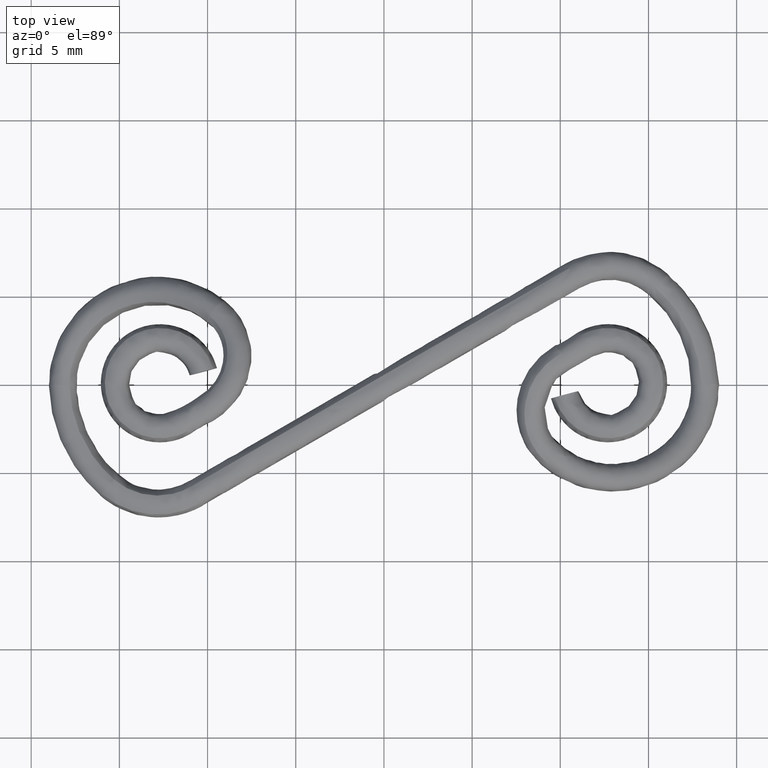
[diagram: clean part render]
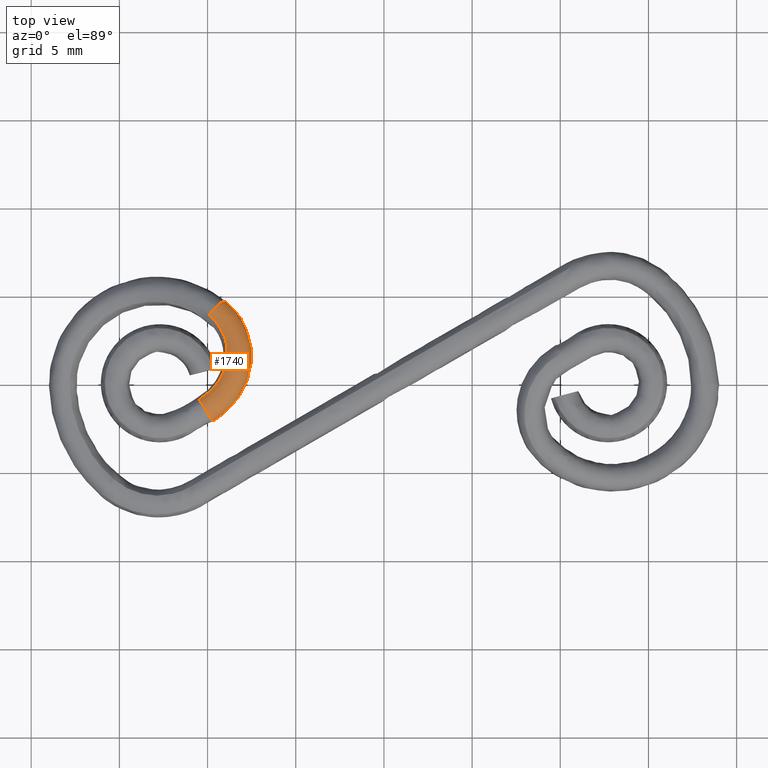
[diagram: same view with one face highlighted and labeled with its STEP entity id]
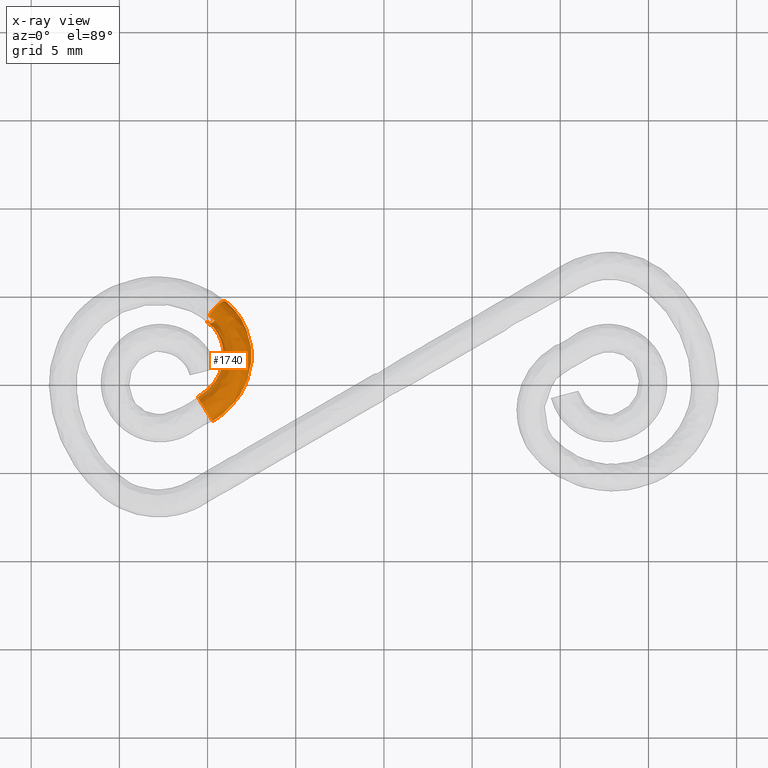
[diagram: x-ray of the same camera — body ghosted, the highlighted face saturated]
A machine part, top view. The second image highlights one B-rep face of the part: STEP entity #1740.
The next image is the same camera in x-ray: the body ghosted, the highlighted face saturated — about 0% of this face is hidden behind the body in this view.
In plain terms, the highlighted face is a freeform B-spline surface patch.
Its self-contained STEP definition (entity closure, byte-faithful):
#214=CARTESIAN_POINT('',(-10.259384407418660,-1.239588838301190,3.486448253810345));
#215=VERTEX_POINT('',#214);
#221=CARTESIAN_POINT('',(-9.703835336696340,-2.146131439929000,4.241502839634532));
#222=VERTEX_POINT('',#221);
#223=CARTESIAN_POINT('',(-9.703835336696340,-2.146131439929000,4.241502839634532));
#224=CARTESIAN_POINT('',(-9.701354668096462,-2.144630523217798,4.032062615204343));
#225=CARTESIAN_POINT('',(-9.744661715935846,-2.070068765534649,3.823878536675959));
#226=CARTESIAN_POINT('',(-9.898398698753024,-1.816923523801569,3.527570067437146));
#227=CARTESIAN_POINT('',(-10.007881947108450,-1.639898865802886,3.441270294712393));
#228=CARTESIAN_POINT('',(-10.166600461727670,-1.386524239768761,3.441153951388853));
#229=CARTESIAN_POINT('',(-10.214191334653311,-1.310962036914593,3.456873590045467));
#230=CARTESIAN_POINT('',(-10.259384407418660,-1.239588838301190,3.486448253810345));
#231=B_SPLINE_CURVE_WITH_KNOTS('',3,(#223,#224,#225,#226,#227,#228,#229,#230),.UNSPECIFIED.,.F.,.U.,(4,2,2,4),(0.500000000000000,0.625000000000000,0.750000000000000,0.803433035941438),.UNSPECIFIED.);
#232=EDGE_CURVE('',#222,#215,#231,.T.);
#234=CARTESIAN_POINT('',(-10.477531504177289,-0.923281509197771,4.711188433420359));
#235=VERTEX_POINT('',#234);
#236=CARTESIAN_POINT('',(-10.477531504177289,-0.923281509197771,4.711188433420359));
#237=CARTESIAN_POINT('',(-10.464941725526650,-0.944264696865793,4.745144681837288));
#238=CARTESIAN_POINT('',(-10.450911701555150,-0.967496679002745,4.777169764554863));
#239=CARTESIAN_POINT('',(-10.358676950107300,-1.119370940043812,4.954912377618960));
#240=CARTESIAN_POINT('',(-10.249200301090999,-1.296384167623944,5.041174493285659));
#241=CARTESIAN_POINT('',(-10.026832301043200,-1.651365991727100,5.041278936023181));
#242=CARTESIAN_POINT('',(-9.915310254957211,-1.827148669560345,4.955120619953089));
#243=CARTESIAN_POINT('',(-9.754558988400881,-2.076045028980230,4.659030656656110));
#244=CARTESIAN_POINT('',(-9.706319647338750,-2.147626048422130,4.450922281891860));
#245=CARTESIAN_POINT('',(-9.703835336696340,-2.146131439929000,4.241502839634532));
#246=B_SPLINE_CURVE_WITH_KNOTS('',3,(#236,#237,#238,#239,#240,#241,#242,#243,#244,#245),.UNSPECIFIED.,.F.,.U.,(4,2,2,2,4),(0.099999989464219,0.125000000000000,0.250000000000000,0.375000000000000,0.500000000000000),.UNSPECIFIED.);
#247=EDGE_CURVE('',#235,#222,#246,.T.);
#249=CARTESIAN_POINT('',(-10.553218530129911,-0.790200751597931,4.241103897763832));
#250=VERTEX_POINT('',#249);
#258=CARTESIAN_POINT('',(-10.487712337059760,-0.883809416313832,3.825365108266582));
#259=VERTEX_POINT('',#258);
#260=CARTESIAN_POINT('',(-10.487712337059760,-0.883809416313832,3.825365108266582));
#261=CARTESIAN_POINT('',(-10.528545332927131,-0.821920870534407,3.950226349181216));
#262=CARTESIAN_POINT('',(-10.551877058860470,-0.788502384862920,4.095367080651237));
#263=CARTESIAN_POINT('',(-10.553218530129911,-0.790200751597931,4.241103897763832));
#264=B_SPLINE_CURVE_WITH_KNOTS('',3,(#260,#261,#262,#263),.UNSPECIFIED.,.F.,.U.,(4,4),(0.913285480192841,1.0),.UNSPECIFIED.);
#265=EDGE_CURVE('',#259,#250,#264,.T.);
#302=CARTESIAN_POINT('',(-10.259384407418660,-1.239588838301190,3.486448253810345));
#303=CARTESIAN_POINT('',(-10.320150007022249,-1.143586118035596,3.525823499213144));
#304=CARTESIAN_POINT('',(-10.376633474046880,-1.055064657580162,3.590030427158738));
#305=CARTESIAN_POINT('',(-10.447653667973460,-0.945031161430309,3.719732704528950));
#306=CARTESIAN_POINT('',(-10.469388704618870,-0.911645559379526,3.770572857804670));
#307=CARTESIAN_POINT('',(-10.487712337059760,-0.883809416313832,3.825365108266582));
#308=B_SPLINE_CURVE_WITH_KNOTS('',3,(#302,#303,#304,#305,#306,#307),.UNSPECIFIED.,.F.,.U.,(4,2,4),(0.803433035941438,0.875000000000000,0.913285480192841),.UNSPECIFIED.);
#309=EDGE_CURVE('',#215,#259,#308,.T.);
#1282=CARTESIAN_POINT('',(-10.511457325186401,-0.928894703550084,4.692351594366400));
#1283=CARTESIAN_POINT('',(-10.497200541772720,-0.952982318359611,4.732979923674587));
#1284=CARTESIAN_POINT('',(-10.412561136361260,-1.094851154657691,4.934081373316897));
#1285=CARTESIAN_POINT('',(-10.168599114159550,-1.492831338629826,5.126960290372204));
#1286=CARTESIAN_POINT('',(-9.945730551477823,-1.846544252897791,4.954620339055110));
#1287=CARTESIAN_POINT('',(-9.785745070998788,-2.095580718094787,4.658521276425645));
#1288=CARTESIAN_POINT('',(-9.737572242772080,-2.167203402727388,4.450411815268985));
#1289=CARTESIAN_POINT('',(-9.732218263597080,-2.163972788575687,4.031579225026472));
#1290=CARTESIAN_POINT('',(-9.775070081556850,-2.089139383372985,3.823435196967014));
#1291=CARTESIAN_POINT('',(-9.927499665255601,-1.835508789074151,3.527216508918806));
#1292=CARTESIAN_POINT('',(-10.145865519611490,-1.479288131317727,3.354714906156148));
#1293=CARTESIAN_POINT('',(-10.368639436871650,-1.125727331761215,3.527048984692442));
#1294=CARTESIAN_POINT('',(-10.531523432049910,-0.872178030686052,3.828478906437904));
#1295=CARTESIAN_POINT('',(-10.580234290839060,-0.799964909937844,4.046320526624163));
#1296=CARTESIAN_POINT('',(-10.579779630911309,-0.806832589052814,4.263292096110825));
#1297=CARTESIAN_POINT('',(-10.502300234945340,-0.923158544186592,4.692501176436603));
#1298=CARTESIAN_POINT('',(-10.488012525212881,-0.947226786766396,4.733130011069006));
#1299=CARTESIAN_POINT('',(-10.403199677902400,-1.088986979152465,4.934234294686036));
#1300=CARTESIAN_POINT('',(-10.158835735092330,-1.486715400290213,5.127119778975908));
#1301=CARTESIAN_POINT('',(-9.935688319255783,-1.840253641125097,4.954784384021683));
#1302=CARTESIAN_POINT('',(-9.775546345407683,-2.089192078991605,4.658687878442387));
#1303=CARTESIAN_POINT('',(-9.727356536872952,-2.160804127183416,4.450578694741317));
#1304=CARTESIAN_POINT('',(-9.722100937092650,-2.157635137851624,4.031744497021979));
#1305=CARTESIAN_POINT('',(-9.765067508951299,-2.082873614434264,3.823598593928680));
#1306=CARTESIAN_POINT('',(-9.917792738071341,-1.829428212264863,3.527375075145862));
#1307=CARTESIAN_POINT('',(-10.136518308408821,-1.473432880389239,3.354867594756677));
#1308=CARTESIAN_POINT('',(-10.359570943346670,-1.120046669403037,3.527197119143748));
#1309=CARTESIAN_POINT('',(-10.522614275673590,-0.866597176999792,3.828624437372622));
#1310=CARTESIAN_POINT('',(-10.571340427359550,-0.794393635698354,4.046465807674816));
#1311=CARTESIAN_POINT('',(-10.570830131378230,-0.801226464409305,4.263438286230901));
#1312=CARTESIAN_POINT('',(-10.441673582256110,-0.885179764704376,4.693491215833032));
#1313=CARTESIAN_POINT('',(-10.426965021253499,-0.908984365183937,4.734126921669771));
#1314=CARTESIAN_POINT('',(-10.339791943379691,-1.049265992105206,4.935269740571857));
#1315=CARTESIAN_POINT('',(-10.089958588222530,-1.443568101858562,5.128244523426666));
#1316=CARTESIAN_POINT('',(-9.863016485693128,-1.794729162286370,4.955971083877222));
#1317=CARTESIAN_POINT('',(-9.700744920524402,-2.042333518074016,4.659909347835781));
#1318=CARTESIAN_POINT('',(-9.652324040899677,-2.113800811650826,4.451803936755757));
#1319=CARTESIAN_POINT('',(-9.648407207012046,-2.111470491359902,4.032947881042335));
#1320=CARTESIAN_POINT('',(-9.692935371957065,-2.037687227214471,3.824776481931776));
#1321=CARTESIAN_POINT('',(-9.849683800525495,-1.786762156729857,3.528487276723061));
#1322=CARTESIAN_POINT('',(-10.073304454593879,-1.433833348284929,3.355899874776603));
#1323=CARTESIAN_POINT('',(-10.300149932626001,-1.082823162784298,3.528167473859103));
#1324=CARTESIAN_POINT('',(-10.465361554963289,-0.830731995246698,3.829559390722065));
#1325=CARTESIAN_POINT('',(-10.514295815117849,-0.758658823642890,4.047397363313950));
#1326=CARTESIAN_POINT('',(-10.513028412940709,-0.765017363639943,4.264382203117184));
#1327=CARTESIAN_POINT('',(-10.367275993469381,-0.838580817233021,4.694707772273574));
#1328=CARTESIAN_POINT('',(-10.353215630835020,-0.862791536599428,4.735332909042064));
#1329=CARTESIAN_POINT('',(-10.269677798197289,-1.005350771631489,4.936416454227300));
#1330=CARTESIAN_POINT('',(-10.028268473328909,-1.404930832360826,5.129253881298658));
#1331=CARTESIAN_POINT('',(-9.807170975284132,-1.759753744845284,4.956885144609153));
#1332=CARTESIAN_POINT('',(-9.648179421962851,-2.009413145710145,4.660769927816782));
#1333=CARTESIAN_POINT('',(-9.600114439301489,-2.081103422640218,4.452658714108380));
#1334=CARTESIAN_POINT('',(-9.594135627232509,-2.077481202971708,4.033836280041022));
#1335=CARTESIAN_POINT('',(-9.636258614349490,-2.002191011395953,3.825704098168465));
#1336=CARTESIAN_POINT('',(-9.786810480339149,-1.747383577722940,3.529515929614535));
#1337=CARTESIAN_POINT('',(-10.002891689400190,-1.389731042062451,3.357051460081379));
#1338=CARTESIAN_POINT('',(-10.223895402471930,-1.035060783567130,3.529414310005051));
#1339=CARTESIAN_POINT('',(-10.385767408961780,-0.780877226908629,3.830860679465113));
#1340=CARTESIAN_POINT('',(-10.434381139376111,-0.708603230702045,4.048703877999837));
#1341=CARTESIAN_POINT('',(-10.434279838312239,-0.715692372788679,4.265669703939603));
#1342=CARTESIAN_POINT('',(-10.207787651651850,-0.738659411960014,4.697309190745608));
#1343=CARTESIAN_POINT('',(-10.192760133150101,-0.762264093578987,4.737950076785885));
#1344=CARTESIAN_POINT('',(-10.103798268494479,-0.901424529416047,4.939121947386394));
#1345=CARTESIAN_POINT('',(-9.849819720966147,-1.293128477180994,5.132164051617550));
#1346=CARTESIAN_POINT('',(-9.620001678922414,-1.642486926465125,4.959937318911658));
#1347=CARTESIAN_POINT('',(-9.456116127394822,-1.889079649094475,4.663901794371910));
#1348=CARTESIAN_POINT('',(-9.407520123104561,-1.960437174160325,4.455799226890915));
#1349=CARTESIAN_POINT('',(-9.404617923074930,-1.958742811582845,4.036926691696746));
#1350=CARTESIAN_POINT('',(-9.450329598597742,-1.885701357540735,3.828736070984270));
#1351=CARTESIAN_POINT('',(-9.610127155345165,-1.636687446190024,3.532397344986879));
#1352=CARTESIAN_POINT('',(-9.837457726027431,-1.286083973572286,3.359749690905396));
#1353=CARTESIAN_POINT('',(-10.067177746336281,-0.936875523441028,3.531970605836306));
#1354=CARTESIAN_POINT('',(-10.234032684208030,-0.685814372343344,3.833335834884999));
#1355=CARTESIAN_POINT('',(-10.283124665934460,-0.613840061271907,4.051171246542278));
#1356=CARTESIAN_POINT('',(-10.281283462565121,-0.619838950837745,4.268165405857474));
#1357=CARTESIAN_POINT('',(-10.121211430094110,-0.676572026304445,4.696732750601518));
#1358=CARTESIAN_POINT('',(-10.104284757480150,-0.698883665680848,4.737378458864145));
#1359=CARTESIAN_POINT('',(-10.004672000839239,-0.830792423025625,4.938577373357597));
#1360=CARTESIAN_POINT('',(-9.726011919277505,-1.205691895524460,5.131682144551913));
#1361=CARTESIAN_POINT('',(-9.479069795334720,-1.543391366328189,4.959498887565658));
#1362=CARTESIAN_POINT('',(-9.305574152542212,-1.783441024813158,4.663487759981505));
#1363=CARTESIAN_POINT('',(-9.255935408774510,-1.854088590934836,4.455387838128290));
#1364=CARTESIAN_POINT('',(-9.259074593580248,-1.856507505195643,4.036499960440328));
#1365=CARTESIAN_POINT('',(-9.311833191578787,-1.788263958065262,3.828291446082616));
#1366=CARTESIAN_POINT('',(-9.489786034451868,-1.551611106745656,3.531906622046571));
#1367=CARTESIAN_POINT('',(-9.739206396143468,-1.216047515614183,3.359202881495812));
#1368=CARTESIAN_POINT('',(-9.986042178840711,-0.878492379604048,3.531380341830161));
#1369=CARTESIAN_POINT('',(-10.162681841456090,-0.634093192462053,3.832720730584222));
#1370=CARTESIAN_POINT('',(-10.212712940300261,-0.562758289140086,4.050553759791790));
#1371=CARTESIAN_POINT('',(-10.207455180281960,-0.566431015433355,4.267556595501391));
#1372=CARTESIAN_POINT('',(-9.758270771141447,-0.387577449589938,4.687038680091054));
#1373=CARTESIAN_POINT('',(-9.736567581135105,-0.406085734814214,4.727556805593498));
#1374=CARTESIAN_POINT('',(-9.610167019276569,-0.516664407005571,4.928040206037822));
#1375=CARTESIAN_POINT('',(-9.269431000252185,-0.842135203364616,5.119486894883879));
#1376=CARTESIAN_POINT('',(-8.979420508680313,-1.145540963211213,4.946153250569171));
#1377=CARTESIAN_POINT('',(-8.781754757331436,-1.366344859591213,4.649496516910434));
#1378=CARTESIAN_POINT('',(-8.729493445969418,-1.434904155051613,4.441326539470379));
#1379=CARTESIAN_POINT('',(-8.747827176389386,-1.449421863880762,4.022844507208074));
#1380=CARTESIAN_POINT('',(-8.818309322126396,-1.395290879627421,3.815109394735279));
#1381=CARTESIAN_POINT('',(-9.041924093168797,-1.194996846448465,3.519944222022547));
#1382=CARTESIAN_POINT('',(-9.346901961267609,-0.903671556087785,3.348724452953500));
#1383=CARTESIAN_POINT('',(-9.636785187392565,-0.600393469893113,3.522051741717400));
#1384=CARTESIAN_POINT('',(-9.838034175012313,-0.375589776638083,3.824049468424308));
#1385=CARTESIAN_POINT('',(-9.890427223259593,-0.306135624632600,4.041945592185551));
#1386=CARTESIAN_POINT('',(-9.876576561716384,-0.302966173309487,4.258718911503778));
#1387=CARTESIAN_POINT('',(-9.524210812636429,-0.124526298857340,4.661353324108419));
#1388=CARTESIAN_POINT('',(-9.499427254388431,-0.139572664024434,4.701533412394406));
#1389=CARTESIAN_POINT('',(-9.355751281186626,-0.230736092460915,4.900121022029868));
#1390=CARTESIAN_POINT('',(-8.974982596299002,-0.511215521305347,5.087174549775683));
#1391=CARTESIAN_POINT('',(-8.657197392250474,-0.783406188502783,4.910792918102355));
#1392=CARTESIAN_POINT('',(-8.443944384245052,-0.986692058445939,4.612425639838138));
#1393=CARTESIAN_POINT('',(-8.389991786441710,-1.053350554915753,4.404070056805280));
#1394=CARTESIAN_POINT('',(-8.418124458338808,-1.078880932025189,3.986663346312747));
#1395=CARTESIAN_POINT('',(-8.500036491751656,-1.037595600873444,3.780182539550433));
#1396=CARTESIAN_POINT('',(-8.753098564227301,-0.870396386373003,3.488248892861259));
#1397=CARTESIAN_POINT('',(-9.093905373154698,-0.619338038273245,3.320960970593306));
#1398=CARTESIAN_POINT('',(-9.411549817774496,-0.347259879288963,3.497334765892708));
#1399=CARTESIAN_POINT('',(-9.628669311895274,-0.140292548039750,3.801074121025271));
#1400=CARTESIAN_POINT('',(-9.682585574238065,-0.072550304948327,4.019137406418152));
#1401=CARTESIAN_POINT('',(-9.663193362640202,-0.063152908516381,4.235302603545883));
#1402=CARTESIAN_POINT('',(-9.098957499903278,0.558846281592704,4.562617960180631));
#1403=CARTESIAN_POINT('',(-9.068577359480806,0.552793529494111,4.601498625645146));
#1404=CARTESIAN_POINT('',(-8.893514471270350,0.512068350408001,4.792798772670565));
#1405=CARTESIAN_POINT('',(-8.440012252809373,0.348470567610459,4.962964898105920));
#1406=CARTESIAN_POINT('',(-8.071764445378078,0.157372589598406,4.774866748842982));
#1407=CARTESIAN_POINT('',(-7.830191671640010,-0.000403766872158,4.469924112550843));
#1408=CARTESIAN_POINT('',(-7.773166260071573,-0.062124244685688,4.260855064115477));
#1409=CARTESIAN_POINT('',(-7.819102197385440,-0.116264094834674,3.847581923686289));
#1410=CARTESIAN_POINT('',(-7.921780680450353,-0.108350083029768,3.645922698557198));
#1411=CARTESIAN_POINT('',(-8.228344223891311,-0.027126852643328,3.366411109394492));
#1412=CARTESIAN_POINT('',(-8.634247009168863,0.119323283871758,3.214237287707252));
#1413=CARTESIAN_POINT('',(-9.002329540573289,0.310348151477542,3.402321908284019));
#1414=CARTESIAN_POINT('',(-9.248283423974213,0.470978975589791,3.712756108095405));
#1415=CARTESIAN_POINT('',(-9.304967136743569,0.534273911835423,3.931461959659964));
#1416=CARTESIAN_POINT('',(-9.275506727508356,0.559850695165433,4.145289516907073));
#1417=CARTESIAN_POINT('',(-8.949707697533114,1.000864847116523,4.476724855763951));
#1418=CARTESIAN_POINT('',(-8.917363346705400,1.000629334860785,4.514475112679861));
#1419=CARTESIAN_POINT('',(-8.731284717491102,0.992528573386527,4.699435668447412));
#1420=CARTESIAN_POINT('',(-8.252255509094487,0.904532053239239,4.854910919073258));
#1421=CARTESIAN_POINT('',(-7.866297059616643,0.765886356108361,4.656620212099608));
#1422=CARTESIAN_POINT('',(-7.614785027045629,0.637546407053710,4.345957473074335));
#1423=CARTESIAN_POINT('',(-7.556681170314680,0.579019928615486,4.136267761916166));
#1424=CARTESIAN_POINT('',(-7.608865459865551,0.506374921425666,3.726590547302380));
#1425=CARTESIAN_POINT('',(-7.718832264021710,0.492703728476140,3.529125767601640));
#1426=CARTESIAN_POINT('',(-8.044173004753194,0.518316060465561,3.260420513493400));
#1427=CARTESIAN_POINT('',(-8.472922257832485,0.597103624226728,3.121394916464041));
#1428=CARTESIAN_POINT('',(-8.858706826796114,0.735701694198827,3.319667142833009));
#1429=CARTESIAN_POINT('',(-9.114780584106233,0.866361195871094,3.635925390428894));
#1430=CARTESIAN_POINT('',(-9.172435569601873,0.926779534627555,3.855190227156005));
#1431=CARTESIAN_POINT('',(-9.139441559582695,0.962821455947471,4.066984196404202));
#1432=CARTESIAN_POINT('',(-8.868751797857282,1.898998074645479,4.263275163854747));
#1433=CARTESIAN_POINT('',(-8.835342036162388,1.910582550980062,4.298216287552505));
#1434=CARTESIAN_POINT('',(-8.643288342329720,1.968771000275078,4.467422578305521));
#1435=CARTESIAN_POINT('',(-8.150413032583657,2.034387879671115,4.586390127625974));
#1436=CARTESIAN_POINT('',(-7.754848184485581,2.002319401252103,4.362770311487345));
#1437=CARTESIAN_POINT('',(-7.497945038838800,1.933790960545735,4.037892782192075));
#1438=CARTESIAN_POINT('',(-7.439256247395270,1.881754327204915,3.826660690973610));
#1439=CARTESIAN_POINT('',(-7.494829750312150,1.771508874665750,3.425919573433460));
#1440=CARTESIAN_POINT('',(-7.608749832338449,1.713978928521555,3.238878243875645));
#1441=CARTESIAN_POINT('',(-7.944275535462004,1.626596063127499,2.997027380543578));
#1442=CARTESIAN_POINT('',(-8.385416947160518,1.567900766713723,2.890675907056718));
#1443=CARTESIAN_POINT('',(-8.780803247588239,1.599973397108805,3.114264936779785));
#1444=CARTESIAN_POINT('',(-9.042366084671796,1.669734502551948,3.444996284185084));
#1445=CARTESIAN_POINT('',(-9.100547872421130,1.724307922055884,3.665650228391478));
#1446=CARTESIAN_POINT('',(-9.065637179061060,1.781613852877843,3.872390606598478));
#1447=CARTESIAN_POINT('',(-8.937417296149821,2.350990216212300,4.136698331582081));
#1448=CARTESIAN_POINT('',(-8.904911224334688,2.368523186376375,4.169973624809916));
#1449=CARTESIAN_POINT('',(-8.717925633025370,2.460072154789843,4.329837555442066));
#1450=CARTESIAN_POINT('',(-8.236794766837697,2.602996070363437,4.427155852232942));
#1451=CARTESIAN_POINT('',(-7.849378256489398,2.624563329789879,4.188515747755933));
#1452=CARTESIAN_POINT('',(-7.597048002341712,2.586135449269736,3.855208778218882));
#1453=CARTESIAN_POINT('',(-7.538855406254124,2.537364872620178,3.643062049340622));
#1454=CARTESIAN_POINT('',(-7.591554213477154,2.408196721539494,3.247620085489215));
#1455=CARTESIAN_POINT('',(-7.702121106348043,2.328594542974775,3.066759915977515));
#1456=CARTESIAN_POINT('',(-8.029007824585111,2.184346037738477,2.840833844054613));
#1457=CARTESIAN_POINT('',(-8.459638045865180,2.056461513843662,2.753858291988767));
#1458=CARTESIAN_POINT('',(-8.846879967301176,2.034924464609994,2.992460312640865));
#1459=CARTESIAN_POINT('',(-9.103786814829215,2.074038025933136,3.331774279110546));
#1460=CARTESIAN_POINT('',(-9.161521714028833,2.125669952431386,3.553251969491880));
#1461=CARTESIAN_POINT('',(-9.128236735878721,2.193677150856275,3.756995541139935));
#1462=CARTESIAN_POINT('',(-9.236486829210691,3.067513699605531,3.902735411588364));
#1463=CARTESIAN_POINT('',(-9.207916712356321,3.094476554457445,3.932931607375289));
#1464=CARTESIAN_POINT('',(-9.043004863818689,3.238910480353786,4.075527252199016));
#1465=CARTESIAN_POINT('',(-8.613025986076023,3.504385817026139,4.132829380880667));
#1466=CARTESIAN_POINT('',(-8.261098844401611,3.610979426622787,3.866425993966816));
#1467=CARTESIAN_POINT('',(-8.028685373285487,3.620268619223948,3.517538171844464));
#1468=CARTESIAN_POINT('',(-7.972653868985605,3.576675570618994,3.303700842125227));
#1469=CARTESIAN_POINT('',(-8.012832086351811,3.417510091460037,2.918053761958459));
#1470=CARTESIAN_POINT('',(-8.108794397276780,3.302917775300787,2.748618761718021));
#1471=CARTESIAN_POINT('',(-8.398054671021313,3.068522684383699,2.552127847648219));
#1472=CARTESIAN_POINT('',(-8.782904239714023,2.830955542043907,2.500966471045867));
#1473=CARTESIAN_POINT('',(-9.134674034506185,2.724433451574917,2.767318285712740));
#1474=CARTESIAN_POINT('',(-9.371302173507484,2.714962830584572,3.122496238236406));
#1475=CARTESIAN_POINT('',(-9.427090734758929,2.761931745765700,3.345496526847488));
#1476=CARTESIAN_POINT('',(-9.400886471562803,2.846903195999286,3.543700842177024));
#1477=CARTESIAN_POINT('',(-9.421396561029498,3.349740310039368,3.798830450056426));
#1478=CARTESIAN_POINT('',(-9.395259976474812,3.380417437316406,3.827659192354197));
#1479=CARTESIAN_POINT('',(-9.243995937318370,3.545681855090995,3.962585843951191));
#1480=CARTESIAN_POINT('',(-8.845643432347520,3.859428124339468,4.002116451455333));
#1481=CARTESIAN_POINT('',(-8.515658733091545,3.999512172081023,3.723383155262619));
#1482=CARTESIAN_POINT('',(-8.295559447356233,4.027596308708945,3.367575744959391));
#1483=CARTESIAN_POINT('',(-8.240864101904345,3.986042598386078,3.152987605699176));
#1484=CARTESIAN_POINT('',(-8.273301048772396,3.815061674672225,2.771690518022437));
#1485=CARTESIAN_POINT('',(-8.360233599798915,3.686687333206981,2.607329533286256));
#1486=CARTESIAN_POINT('',(-8.626230101813345,3.416785024697025,2.423911024092181));
#1487=CARTESIAN_POINT('',(-8.982774300012649,3.136015753552139,2.388655027935990));
#1488=CARTESIAN_POINT('',(-9.312612312829867,2.996019495828382,2.667330761556616));
#1489=CARTESIAN_POINT('',(-9.536702494486754,2.967412391238948,3.029554044225499));
#1490=CARTESIAN_POINT('',(-9.591287675653327,3.012544627678733,3.253230530956854));
#1491=CARTESIAN_POINT('',(-9.569461299072289,3.104198012027455,3.448974814750369));
#1492=CARTESIAN_POINT('',(-9.729470221616342,3.669445958080090,3.663861266323007));
#1493=CARTESIAN_POINT('',(-9.707388083591502,3.704330602522324,3.690913731275461));
#1494=CARTESIAN_POINT('',(-9.578862313276224,3.893191741387395,3.815878611680397));
#1495=CARTESIAN_POINT('',(-9.233201698116387,4.261619179184073,3.832324595986320));
#1496=CARTESIAN_POINT('',(-8.939774732187171,4.439641090299570,3.537575153284072));
#1497=CARTESIAN_POINT('',(-8.740191785567363,4.489016077274598,3.172779426417461));
#1498=CARTESIAN_POINT('',(-8.687722574441073,4.449772519651175,2.957216011094197));
#1499=CARTESIAN_POINT('',(-8.707261978939165,4.265407089327912,2.581569422563134));
#1500=CARTESIAN_POINT('',(-8.779150274179653,4.121420508106441,2.423799418207658));
#1501=CARTESIAN_POINT('',(-9.006387597757859,3.811295726748918,2.257361534887433));
#1502=CARTESIAN_POINT('',(-9.315772943007458,3.481587212862249,2.242766106315689));
#1503=CARTESIAN_POINT('',(-9.609070983584649,3.303671523378950,2.537450205213128));
#1504=CARTESIAN_POINT('',(-9.812272005563290,3.253386673544978,2.908825139104611));
#1505=CARTESIAN_POINT('',(-9.864852271940766,3.296438329558840,3.133379984074423));
#1506=CARTESIAN_POINT('',(-9.850319785174007,3.395660992149297,3.325928766780765));
#1507=CARTESIAN_POINT('',(-9.804188139192029,3.738915514907188,3.633171983972221));
#1508=CARTESIAN_POINT('',(-9.783757408118023,3.775255698627433,3.659566400043668));
#1509=CARTESIAN_POINT('',(-9.664493107787241,3.972279835448109,3.780840791252214));
#1510=CARTESIAN_POINT('',(-9.340294299499877,4.359623555918971,3.788734727035816));
#1511=CARTESIAN_POINT('',(-9.061757574927368,4.550769606712724,3.488051860340889));
#1512=CARTESIAN_POINT('',(-8.870531087755261,4.607509902238141,3.119926275641551));
#1513=CARTESIAN_POINT('',(-8.818968597299589,4.569065513041730,2.904001554671350));
#1514=CARTESIAN_POINT('',(-8.833254733563340,4.380069874868675,2.530448279445760));
#1515=CARTESIAN_POINT('',(-8.899015388645340,4.230682429415976,2.375120003769320));
#1516=CARTESIAN_POINT('',(-9.110465803969275,3.906643174143832,2.214972850762048));
#1517=CARTESIAN_POINT('',(-9.400642990278310,3.560004726714634,2.208031442573159));
#1518=CARTESIAN_POINT('',(-9.679058023725029,3.368971273744822,2.508646082787106));
#1519=CARTESIAN_POINT('',(-9.873750733632845,3.311187273815760,2.883411384306898));
#1520=CARTESIAN_POINT('',(-9.925514383766851,3.353519179156662,3.108291630239939));
#1521=CARTESIAN_POINT('',(-9.913952754368500,3.455360341755943,3.299656591005727));
#1522=CARTESIAN_POINT('',(-9.913635140362310,3.827603588124414,3.591531012950136));
#1523=CARTESIAN_POINT('',(-9.893868295937123,3.864481826447900,3.617672819755538));
#1524=CARTESIAN_POINT('',(-9.778327224602203,4.064523496814851,3.737530520210848));
#1525=CARTESIAN_POINT('',(-9.462756336094168,4.458859809506365,3.742141528644039));
#1526=CARTESIAN_POINT('',(-9.190205678050958,4.654857328984416,3.439180962110397));
#1527=CARTESIAN_POINT('',(-9.002338593801795,4.714320283887992,3.069777124501490));
#1528=CARTESIAN_POINT('',(-8.951140616471312,4.676171315107601,2.853713706945805));
#1529=CARTESIAN_POINT('',(-8.963314871746274,4.485464074248077,2.480964004797694));
#1530=CARTESIAN_POINT('',(-9.026612137324335,4.334080145455709,2.326573050515772));
#1531=CARTESIAN_POINT('',(-9.231716014313115,4.004897266262196,2.168840758781973));
#1532=CARTESIAN_POINT('',(-9.514171276022772,3.652000500344951,2.164837546370504));
#1533=CARTESIAN_POINT('',(-9.786603151190779,3.456117935713717,2.467728779832643));
#1534=CARTESIAN_POINT('',(-9.977875411490750,3.395561800551567,2.843795562527473));
#1535=CARTESIAN_POINT('',(-10.029310771632920,3.437627643045936,3.068800722093710));
#1536=CARTESIAN_POINT('',(-10.018943464863939,3.540436760374638,3.259711241839149));
#1537=CARTESIAN_POINT('',(-9.930009015175735,3.840870513761349,3.585301623343387));
#1538=CARTESIAN_POINT('',(-9.910250269280162,3.877755321367199,3.611440347199824));
#1539=CARTESIAN_POINT('',(-9.794754616368714,4.077833833767171,3.731280757770470));
#1540=CARTESIAN_POINT('',(-9.479288977036021,4.472255521171132,3.735851699998260));
#1541=CARTESIAN_POINT('',(-9.206811341143659,4.668312273630225,3.432863335482093));
#1542=CARTESIAN_POINT('',(-9.018985237251025,4.727808470206156,3.063443897557132));
#1543=CARTESIAN_POINT('',(-8.967791706553916,4.689663108237802,2.847378787297854));
#1544=CARTESIAN_POINT('',(-8.979940199780113,4.498934969779003,2.474638892300488));
#1545=CARTESIAN_POINT('',(-9.043207415314425,4.347526665259240,2.320259377482120));
#1546=CARTESIAN_POINT('',(-9.248233872995508,4.018280985929115,2.162556557720702));
#1547=CARTESIAN_POINT('',(-9.530594937469086,3.665307810273644,2.158589204267709));
#1548=CARTESIAN_POINT('',(-9.802953825963053,3.469366041438973,2.461508222207083));
#1549=CARTESIAN_POINT('',(-9.994184361216169,3.408776060540582,2.837590888705122));
#1550=CARTESIAN_POINT('',(-10.045615716596791,3.450838654661278,3.062597572761809));
#1551=CARTESIAN_POINT('',(-10.035262978929490,3.553659590106237,3.253502546314620));
#1552=CARTESIAN_POINT('',(-9.946782630691709,3.854460725315559,3.578920306668938));
#1553=CARTESIAN_POINT('',(-9.927000970611910,3.891326967619152,3.605067747925553));
#1554=CARTESIAN_POINT('',(-9.811376809692971,4.091301361540277,3.724957047678431));
#1555=CARTESIAN_POINT('',(-9.495613376023050,4.485481772978296,3.729641281847815));
#1556=CARTESIAN_POINT('',(-9.222929129955466,4.681371127794183,3.426731519457795));
#1557=CARTESIAN_POINT('',(-9.034987075712447,4.740773380228013,3.057356193320299));
#1558=CARTESIAN_POINT('',(-8.983780963830681,4.702617824855912,2.841295869407734));
#1559=CARTESIAN_POINT('',(-8.996002349140007,4.511948744293192,2.468528243576018));
#1560=CARTESIAN_POINT('',(-9.059354589084844,4.360609327404617,2.314116382338427));
#1561=CARTESIAN_POINT('',(-9.264600098817535,4.031541126247935,2.156330227103305));
#1562=CARTESIAN_POINT('',(-9.547227687027633,3.678783890803322,2.152261478197756));
#1563=CARTESIAN_POINT('',(-9.819793085317997,3.483009438283925,2.455101932198788));
#1564=CARTESIAN_POINT('',(-10.011141677957990,3.422515108669826,2.831139685315010));
#1565=CARTESIAN_POINT('',(-10.062584364272389,3.464586883228500,3.056142058666485));
#1566=CARTESIAN_POINT('',(-10.052190404275910,3.567374419929207,3.247062714712308));
#1567=B_SPLINE_SURFACE_WITH_KNOTS('',3,3,((#1282,#1297,#1312,#1327,#1342,#1357,#1372,#1387,#1402,#1417,#1432,#1447,#1462,#1477,#1492,#1507,#1522,#1537,#1552),(#1283,#1298,#1313,#1328,#1343,#1358,#1373,#1388,#1403,#1418,#1433,#1448,#1463,#1478,#1493,#1508,#1523,#1538,#1553),(#1284,#1299,#1314,#1329,#1344,#1359,#1374,#1389,#1404,#1419,#1434,#1449,#1464,#1479,#1494,#1509,#1524,#1539,#1554),(#1285,#1300,#1315,#1330,#1345,#1360,#1375,#1390,#1405,#1420,#1435,#1450,#1465,#1480,#1495,#1510,#1525,#1540,#1555),(#1286,#1301,#1316,#1331,#1346,#1361,#1376,#1391,#1406,#1421,#1436,#1451,#1466,#1481,#1496,#1511,#1526,#1541,#1556),(#1287,#1302,#1317,#1332,#1347,#1362,#1377,#1392,#1407,#1422,#1437,#1452,#1467,#1482,#1497,#1512,#1527,#1542,#1557),(#1288,#1303,#1318,#1333,#1348,#1363,#1378,#1393,#1408,#1423,#1438,#1453,#1468,#1483,#1498,#1513,#1528,#1543,#1558),(#1289,#1304,#1319,#1334,#1349,#1364,#1379,#1394,#1409,#1424,#1439,#1454,#1469,#1484,#1499,#1514,#1529,#1544,#1559),(#1290,#1305,#1320,#1335,#1350,#1365,#1380,#1395,#1410,#1425,#1440,#1455,#1470,#1485,#1500,#1515,#1530,#1545,#1560),(#1291,#1306,#1321,#1336,#1351,#1366,#1381,#1396,#1411,#1426,#1441,#1456,#1471,#1486,#1501,#1516,#1531,#1546,#1561),(#1292,#1307,#1322,#1337,#1352,#1367,#1382,#1397,#1412,#1427,#1442,#1457,#1472,#1487,#1502,#1517,#1532,#1547,#1562),(#1293,#1308,#1323,#1338,#1353,#1368,#1383,#1398,#1413,#1428,#1443,#1458,#1473,#1488,#1503,#1518,#1533,#1548,#1563),(#1294,#1309,#1324,#1339,#1354,#1369,#1384,#1399,#1414,#1429,#1444,#1459,#1474,#1489,#1504,#1519,#1534,#1549,#1564),(#1295,#1310,#1325,#1340,#1355,#1370,#1385,#1400,#1415,#1430,#1445,#1460,#1475,#1490,#1505,#1520,#1535,#1550,#1565),(#1296,#1311,#1326,#1341,#1356,#1371,#1386,#1401,#1416,#1431,#1446,#1461,#1476,#1491,#1506,#1521,#1536,#1551,#1566)),.UNSPECIFIED.,.F.,.F.,.U.,(4,1,1,2,2,2,1,2,4),(4,1,2,2,2,2,2,2,2,4),(0.0,0.148446087234084,0.777152900736578,1.405859714239072,2.034566527741566,2.663273341244060,3.291980154746554,3.920686968249048,4.572027581157368),(0.0,0.042864952461724,0.296284574405741,0.814232327599083,2.368075587179111,4.439866599952480,6.511657612725850,8.065500872305877,8.583448625499221,8.667516115281446),.UNSPECIFIED.);
#1568=CARTESIAN_POINT('',(-9.059387980335979,4.674913595426780,3.222986224316580));
#1569=VERTEX_POINT('',#1568);
#1570=CARTESIAN_POINT('',(-9.906934944882353,3.846819592701188,3.602153643109173));
#1571=VERTEX_POINT('',#1570);
#1572=CARTESIAN_POINT('',(-9.059387980335979,4.674913595426780,3.222986224316580));
#1573=CARTESIAN_POINT('',(-9.065183282482620,4.673888185966382,3.234617465727733));
#1574=CARTESIAN_POINT('',(-9.071142972305054,4.672604158926495,3.246131191696617));
#1575=CARTESIAN_POINT('',(-9.083395564711314,4.669511888676754,3.268920440588862));
#1576=CARTESIAN_POINT('',(-9.089769467455598,4.667679845597061,3.280340638156275));
#1577=CARTESIAN_POINT('',(-9.109302196982625,4.661411882999782,3.314063721358772));
#1578=CARTESIAN_POINT('',(-9.122862293932153,4.656219846971094,3.335836356151705));
#1579=CARTESIAN_POINT('',(-9.165075924332811,4.637757109762222,3.399133444190325));
#1580=CARTESIAN_POINT('',(-9.195244471705141,4.621634254744397,3.438661224839906));
#1581=CARTESIAN_POINT('',(-9.259661361087991,4.581707982276888,3.512339937845111));
#1582=CARTESIAN_POINT('',(-9.292894922052083,4.558533834774229,3.545330771560706));
#1583=CARTESIAN_POINT('',(-9.344222158582348,4.519115449117160,3.589211962745945));
#1584=CARTESIAN_POINT('',(-9.361580428698153,4.505191989825997,3.602896793003176));
#1585=CARTESIAN_POINT('',(-9.396815939361119,4.475712299307153,3.628304136826937));
#1586=CARTESIAN_POINT('',(-9.414769963161422,4.460081109862506,3.640061123322267));
#1587=CARTESIAN_POINT('',(-9.468250651528141,4.411680360600865,3.671496923408530));
#1588=CARTESIAN_POINT('',(-9.503719496494224,4.377131204908872,3.687570593899735));
#1589=CARTESIAN_POINT('',(-9.574305147895171,4.303689728905847,3.710423520353042));
#1590=CARTESIAN_POINT('',(-9.609696191677100,4.264452405296336,3.717175194189825));
#1591=CARTESIAN_POINT('',(-9.677303243461177,4.184806912187229,3.720928220962671));
#1592=CARTESIAN_POINT('',(-9.709836493855963,4.144104395197359,3.718101938969836));
#1593=CARTESIAN_POINT('',(-9.756677999981461,4.081694290943682,3.706612165252845));
#1594=CARTESIAN_POINT('',(-9.771967152979221,4.060646060759572,3.701541213032354));
#1595=CARTESIAN_POINT('',(-9.801200772012821,4.019007490280943,3.689129098518137));
#1596=CARTESIAN_POINT('',(-9.815233710461694,3.998301941417699,3.681771438313016));
#1597=CARTESIAN_POINT('',(-9.855566889929124,3.936529241610026,3.656215976878212));
#1598=CARTESIAN_POINT('',(-9.880178141173618,3.895629694477079,3.634372210036795));
#1599=CARTESIAN_POINT('',(-9.903766939408527,3.852653795353676,3.606075750689835));
#1600=CARTESIAN_POINT('',(-9.905359403993641,3.849731766748398,3.604125016984886));
#1601=CARTESIAN_POINT('',(-9.906934944882353,3.846819592701188,3.602153643109173));
#1602=B_SPLINE_CURVE_WITH_KNOTS('',3,(#1572,#1573,#1574,#1575,#1576,#1577,#1578,#1579,#1580,#1581,#1582,#1583,#1584,#1585,#1586,#1587,#1588,#1589,#1590,#1591,#1592,#1593,#1594,#1595,#1596,#1597,#1598,#1599,#1600,#1601),.UNSPECIFIED.,.F.,.U.,(4,2,2,2,2,2,2,2,2,2,2,2,2,2,4),(0.0,0.015625000000000,0.031250000000001,0.062500000000001,0.125000000000001,0.187500000000001,0.218750000000001,0.250000000000001,0.312500000000001,0.375000000000000,0.437499999999999,0.468749999999998,0.499999999999998,0.562499999999997,0.567075899729916),.UNSPECIFIED.);
#1603=EDGE_CURVE('',#1569,#1571,#1602,.T.);
#1604=ORIENTED_EDGE('',*,*,#1603,.T.);
#1605=CARTESIAN_POINT('',(-10.477531504177289,-0.923281509197771,4.711188433420359));
#1606=CARTESIAN_POINT('',(-10.424002776542670,-0.889749884655190,4.712062770262735));
#1607=CARTESIAN_POINT('',(-10.360601099984571,-0.850038287939855,4.713099535330772));
#1608=CARTESIAN_POINT('',(-10.200664282847340,-0.749835857479216,4.715708256250910));
#1609=CARTESIAN_POINT('',(-10.113191879523241,-0.687193048938060,4.715147966061225));
#1610=CARTESIAN_POINT('',(-9.930628702660796,-0.541667482158528,4.710231674571097));
#1611=CARTESIAN_POINT('',(-9.843599511712567,-0.463839456167362,4.705745207466286));
#1612=CARTESIAN_POINT('',(-9.596811072654010,-0.216637082377746,4.686305298338532));
#1613=CARTESIAN_POINT('',(-9.451411856014209,-0.033449699068914,4.665336674566151));
#1614=CARTESIAN_POINT('',(-9.084660992540444,0.555865641284508,4.580195848953865));
#1615=CARTESIAN_POINT('',(-8.934494301095938,1.000605942902620,4.493773485424699));
#1616=CARTESIAN_POINT('',(-8.853040665934575,1.904261198634252,4.279011430738722));
#1617=CARTESIAN_POINT('',(-8.922126880624466,2.359036293897320,4.151655615443374));
#1618=CARTESIAN_POINT('',(-9.180061282373130,2.976942305361733,3.949889087468830));
#1619=CARTESIAN_POINT('',(-9.291377163478702,3.171879056452769,3.880993002863944));
#1620=CARTESIAN_POINT('',(-9.491756205775035,3.439547445854417,3.778069098690802));
#1621=CARTESIAN_POINT('',(-9.564097405046297,3.524669555226939,3.743828954446774));
#1622=CARTESIAN_POINT('',(-9.719033493861591,3.685641829400914,3.675903190670526));
#1623=CARTESIAN_POINT('',(-9.794540513581046,3.755743938807368,3.644915424615551));
#1624=CARTESIAN_POINT('',(-9.894818144106859,3.837001843132429,3.606763086915101));
#1625=CARTESIAN_POINT('',(-9.900818431108345,3.841863862114945,3.604480223245708));
#1626=CARTESIAN_POINT('',(-9.906934944882353,3.846819592701188,3.602153643109173));
#1627=B_SPLINE_CURVE_WITH_KNOTS('',3,(#1605,#1606,#1607,#1608,#1609,#1610,#1611,#1612,#1613,#1614,#1615,#1616,#1617,#1618,#1619,#1620,#1621,#1622,#1623,#1624,#1625,#1626),.UNSPECIFIED.,.F.,.U.,(4,2,2,2,2,2,2,2,2,2,4),(-0.030579776191420,0.0,0.062500000000000,0.125000000000000,0.250000000000000,0.500000000000000,0.750000000000000,0.875000000000000,0.937500000000000,1.0,1.003870146823559),.UNSPECIFIED.);
#1628=EDGE_CURVE('',#235,#1571,#1627,.T.);
#1629=ORIENTED_EDGE('',*,*,#1628,.F.);
#1630=ORIENTED_EDGE('',*,*,#247,.T.);
#1631=ORIENTED_EDGE('',*,*,#232,.T.);
#1632=ORIENTED_EDGE('',*,*,#309,.T.);
#1633=ORIENTED_EDGE('',*,*,#265,.T.);
#1634=CARTESIAN_POINT('',(-10.017231713933541,3.528219933815038,3.240482905691120));
#1635=VERTEX_POINT('',#1634);
#1636=CARTESIAN_POINT('',(-10.553218530129911,-0.790200751597931,4.241103897763832));
#1637=CARTESIAN_POINT('',(-10.501444791135150,-0.757768472430349,4.241949542534988));
#1638=CARTESIAN_POINT('',(-10.433951613489731,-0.715493406225617,4.243053013962306));
#1639=CARTESIAN_POINT('',(-10.281126700741989,-0.619747417011640,4.245545906835599));
#1640=CARTESIAN_POINT('',(-10.207616565149040,-0.566605568874697,4.244948820116031));
#1641=CARTESIAN_POINT('',(-10.042608175577341,-0.435073382700880,4.240505254338943));
#1642=CARTESIAN_POINT('',(-9.963947476445650,-0.364729107173024,4.236450187929216));
#1643=CARTESIAN_POINT('',(-9.740889538469235,-0.141297099062354,4.218879550277891));
#1644=CARTESIAN_POINT('',(-9.609471500923851,0.024275444825088,4.199927200828268));
#1645=CARTESIAN_POINT('',(-9.277986327508396,0.556923710381828,4.122973251975921));
#1646=CARTESIAN_POINT('',(-9.142259162042494,0.958898921057261,4.044861007078166));
#1647=CARTESIAN_POINT('',(-9.068637628028526,1.775661019958750,3.850749853090774));
#1648=CARTESIAN_POINT('',(-9.131080537172279,2.186706127475825,3.735640213193246));
#1649=CARTESIAN_POINT('',(-9.364212398026442,2.745195924686978,3.553274993333362));
#1650=CARTESIAN_POINT('',(-9.464824352559745,2.921388074468910,3.491003765967393));
#1651=CARTESIAN_POINT('',(-9.645935347645397,3.163318185971840,3.397976742216900));
#1652=CARTESIAN_POINT('',(-9.711320365750307,3.240255181406468,3.367029036698697));
#1653=CARTESIAN_POINT('',(-9.851358125117885,3.385748794947525,3.305634829470601));
#1654=CARTESIAN_POINT('',(-9.914723311864384,3.445155239717845,3.279483768243993));
#1655=CARTESIAN_POINT('',(-10.008930755821790,3.521493736895812,3.243641068556691));
#1656=CARTESIAN_POINT('',(-10.013030186661890,3.524815509430807,3.242081399171928));
#1657=CARTESIAN_POINT('',(-10.017231713933541,3.528219933815038,3.240482905691120));
#1658=B_SPLINE_CURVE_WITH_KNOTS('',3,(#1636,#1637,#1638,#1639,#1640,#1641,#1642,#1643,#1644,#1645,#1646,#1647,#1648,#1649,#1650,#1651,#1652,#1653,#1654,#1655,#1656,#1657),.UNSPECIFIED.,.F.,.U.,(4,2,2,2,2,2,2,2,2,2,4),(-0.030579776191420,0.0,0.062500000000000,0.125000000000000,0.250000000000000,0.500000000000000,0.750000000000000,0.875000000000000,0.937500000000000,1.0,1.002754123692566),.UNSPECIFIED.);
#1659=EDGE_CURVE('',#250,#1635,#1658,.T.);
#1660=ORIENTED_EDGE('',*,*,#1659,.T.);
#1661=CARTESIAN_POINT('',(-9.884383594162500,3.409352695088715,2.696276374139510));
#1662=VERTEX_POINT('',#1661);
#1663=CARTESIAN_POINT('',(-10.017231713933541,3.528219933815038,3.240482905691120));
#1664=CARTESIAN_POINT('',(-10.017383737123859,3.522611583187348,3.229907046700098));
#1665=CARTESIAN_POINT('',(-10.017346520452300,3.517177634985437,3.219226058624639));
#1666=CARTESIAN_POINT('',(-10.016613411305549,3.500422395077044,3.184837432457468));
#1667=CARTESIAN_POINT('',(-10.015201674400981,3.489870338520050,3.160945630162379));
#1668=CARTESIAN_POINT('',(-10.008388643028759,3.460972866048519,3.088584845137393));
#1669=CARTESIAN_POINT('',(-10.000440014966840,3.445353522091352,3.039438589656086));
#1670=CARTESIAN_POINT('',(-9.983401456843842,3.427399031221041,2.964359104838519));
#1671=CARTESIAN_POINT('',(-9.976888430597269,3.422381096351142,2.939257041138392));
#1672=CARTESIAN_POINT('',(-9.962418110999630,3.414379191735784,2.889621018726584));
#1673=CARTESIAN_POINT('',(-9.946455464773763,3.408357697941181,2.840335653705810));
#1674=CARTESIAN_POINT('',(-9.927514517783752,3.406288572817761,2.791750112811529));
#1675=CARTESIAN_POINT('',(-9.907031309466898,3.406266087981317,2.743526965909303));
#1676=CARTESIAN_POINT('',(-9.895972849205318,3.407296868683441,2.719525598809406));
#1677=CARTESIAN_POINT('',(-9.884383594162500,3.409352695088715,2.696276374139510));
#1678=B_SPLINE_CURVE_WITH_KNOTS('',3,(#1663,#1664,#1665,#1666,#1667,#1668,#1669,#1670,#1671,#1672,#1673,#1674,#1675,#1676,#1677),.UNSPECIFIED.,.F.,.U.,(4,2,2,2,2,1,2,4),(0.767061458564381,0.781249999999997,0.812499999999997,0.874999999999998,0.906249999999998,0.937499999999999,0.968749999999999,1.0),.UNSPECIFIED.);
#1679=EDGE_CURVE('',#1635,#1662,#1678,.T.);
#1680=ORIENTED_EDGE('',*,*,#1679,.T.);
#1681=CARTESIAN_POINT('',(-9.105669165661146,4.120279536177234,2.252424275140079));
#1682=VERTEX_POINT('',#1681);
#1683=CARTESIAN_POINT('',(-9.105669165661146,4.120279536177234,2.252424275140079));
#1684=CARTESIAN_POINT('',(-9.108708188575866,4.115547943770569,2.250335107819402));
#1685=CARTESIAN_POINT('',(-9.111779984237996,4.110808487280697,2.248307442186128));
#1686=CARTESIAN_POINT('',(-9.142149663994786,4.064372112419246,2.229080431278939));
#1687=CARTESIAN_POINT('',(-9.171359671482815,4.022909681335294,2.216820244432637));
#1688=CARTESIAN_POINT('',(-9.217869105032181,3.961034276545334,2.205375131031674));
#1689=CARTESIAN_POINT('',(-9.233825755227624,3.940462708277122,2.202729042962219));
#1690=CARTESIAN_POINT('',(-9.266661335460693,3.899428247083557,2.199815224525766));
#1691=CARTESIAN_POINT('',(-9.283513727000738,3.879006629746274,2.199565677321539));
#1692=CARTESIAN_POINT('',(-9.334392812246023,3.819191938305016,2.202404288361798));
#1693=CARTESIAN_POINT('',(-9.369076903787615,3.780800885822369,2.208993556593794));
#1694=CARTESIAN_POINT('',(-9.422285956983053,3.725514371540897,2.226156537308803));
#1695=CARTESIAN_POINT('',(-9.440327446282756,3.707371596619101,2.233154692250055));
#1696=CARTESIAN_POINT('',(-9.476186030871563,3.672540592537542,2.249467037823193));
#1697=CARTESIAN_POINT('',(-9.494008260955001,3.655843199453145,2.258775121748952));
#1698=CARTESIAN_POINT('',(-9.547162200454373,3.607834486771603,2.290044768365922));
#1699=CARTESIAN_POINT('',(-9.582187938039059,3.578563827908250,2.315282440803825));
#1700=CARTESIAN_POINT('',(-9.651426571567978,3.525434870024361,2.374448947473322));
#1701=CARTESIAN_POINT('',(-9.684808471366825,3.502234015293227,2.407706380913316));
#1702=CARTESIAN_POINT('',(-9.732442333338728,3.472721685724267,2.462203441773490));
#1703=CARTESIAN_POINT('',(-9.747948452927568,3.463744621192058,2.481177931319590));
#1704=CARTESIAN_POINT('',(-9.778196638407490,3.447559186647845,2.520789284424890));
#1705=CARTESIAN_POINT('',(-9.792991494353842,3.440333460741397,2.541519223165650));
#1706=CARTESIAN_POINT('',(-9.835250369809122,3.421839408202583,2.604943273114756));
#1707=CARTESIAN_POINT('',(-9.861056476779533,3.413504082802630,2.649446679331282));
#1708=CARTESIAN_POINT('',(-9.884383594162500,3.409352695088715,2.696276374139510));
#1709=B_SPLINE_CURVE_WITH_KNOTS('',3,(#1683,#1684,#1685,#1686,#1687,#1688,#1689,#1690,#1691,#1692,#1693,#1694,#1695,#1696,#1697,#1698,#1699,#1700,#1701,#1702,#1703,#1704,#1705,#1706,#1707,#1708),.UNSPECIFIED.,.F.,.U.,(4,2,2,2,2,2,2,2,2,2,2,2,4),(0.492889295149358,0.500000000000010,0.562500000000010,0.593750000000010,0.625000000000010,0.687500000000008,0.718750000000008,0.750000000000008,0.812500000000006,0.875000000000004,0.906250000000003,0.937500000000002,1.0),.UNSPECIFIED.);
#1710=EDGE_CURVE('',#1682,#1662,#1709,.T.);
#1711=ORIENTED_EDGE('',*,*,#1710,.F.);
#1712=CARTESIAN_POINT('',(-9.059387980335979,4.674913595426780,3.222986224316580));
#1713=CARTESIAN_POINT('',(-9.047786185791713,4.676952873603677,3.199733979770065));
#1714=CARTESIAN_POINT('',(-9.036831945129769,4.677963609669485,3.175998164333513));
#1715=CARTESIAN_POINT('',(-9.016171609539558,4.677906778994093,3.127429031802963));
#1716=CARTESIAN_POINT('',(-9.006546698256035,4.676827883562882,3.102761668902219));
#1717=CARTESIAN_POINT('',(-8.980151860281106,4.670588415638764,3.028749414436772));
#1718=CARTESIAN_POINT('',(-8.965765475346473,4.662495193120305,2.979304537363669));
#1719=CARTESIAN_POINT('',(-8.943230521753520,4.638677702303965,2.880211523659071));
#1720=CARTESIAN_POINT('',(-8.935073328548429,4.622693653441735,2.830038255221175));
#1721=CARTESIAN_POINT('',(-8.926013038102859,4.583981341065990,2.733566383309887));
#1722=CARTESIAN_POINT('',(-8.924990307109590,4.561233615092251,2.686946651385983));
#1723=CARTESIAN_POINT('',(-8.930189083236057,4.508731881117438,2.597045953836233));
#1724=CARTESIAN_POINT('',(-8.936491736226058,4.478708690248522,2.553432766664192));
#1725=CARTESIAN_POINT('',(-8.955593378243352,4.414463280318207,2.473240216419742));
#1726=CARTESIAN_POINT('',(-8.968363705812418,4.380027849211582,2.436179319257520));
#1727=CARTESIAN_POINT('',(-8.992394298883349,4.324874598709528,2.385182566111028));
#1728=CARTESIAN_POINT('',(-9.001244259042798,4.305875873800090,2.368953010441687));
#1729=CARTESIAN_POINT('',(-9.020231293597680,4.267493792686726,2.338755227817500));
#1730=CARTESIAN_POINT('',(-9.040585685507729,4.228532292076908,2.310627848151530));
#1731=CARTESIAN_POINT('',(-9.063681978579295,4.188408606072104,2.286652621836221));
#1732=CARTESIAN_POINT('',(-9.085413238686305,4.152314354688435,2.267317635626105));
#1733=CARTESIAN_POINT('',(-9.095352356643712,4.136342260430502,2.259516565846699));
#1734=CARTESIAN_POINT('',(-9.105669165661146,4.120279536177234,2.252424275140079));
#1735=B_SPLINE_CURVE_WITH_KNOTS('',3,(#1712,#1713,#1714,#1715,#1716,#1717,#1718,#1719,#1720,#1721,#1722,#1723,#1724,#1725,#1726,#1727,#1728,#1729,#1730,#1731,#1732,#1733,#1734),.UNSPECIFIED.,.F.,.U.,(4,2,2,2,2,2,2,2,2,1,2,4),(0.0,0.031250000000001,0.062500000000002,0.125000000000003,0.187500000000004,0.250000000000005,0.312500000000007,0.375000000000008,0.406250000000008,0.437500000000009,0.468750000000010,0.492889295149358),.UNSPECIFIED.);
#1736=EDGE_CURVE('',#1569,#1682,#1735,.T.);
#1737=ORIENTED_EDGE('',*,*,#1736,.F.);
#1738=EDGE_LOOP('',(#1604,#1629,#1630,#1631,#1632,#1633,#1660,#1680,#1711,#1737));
#1739=FACE_OUTER_BOUND('',#1738,.T.);
#1740=ADVANCED_FACE('',(#1739),#1567,.T.);